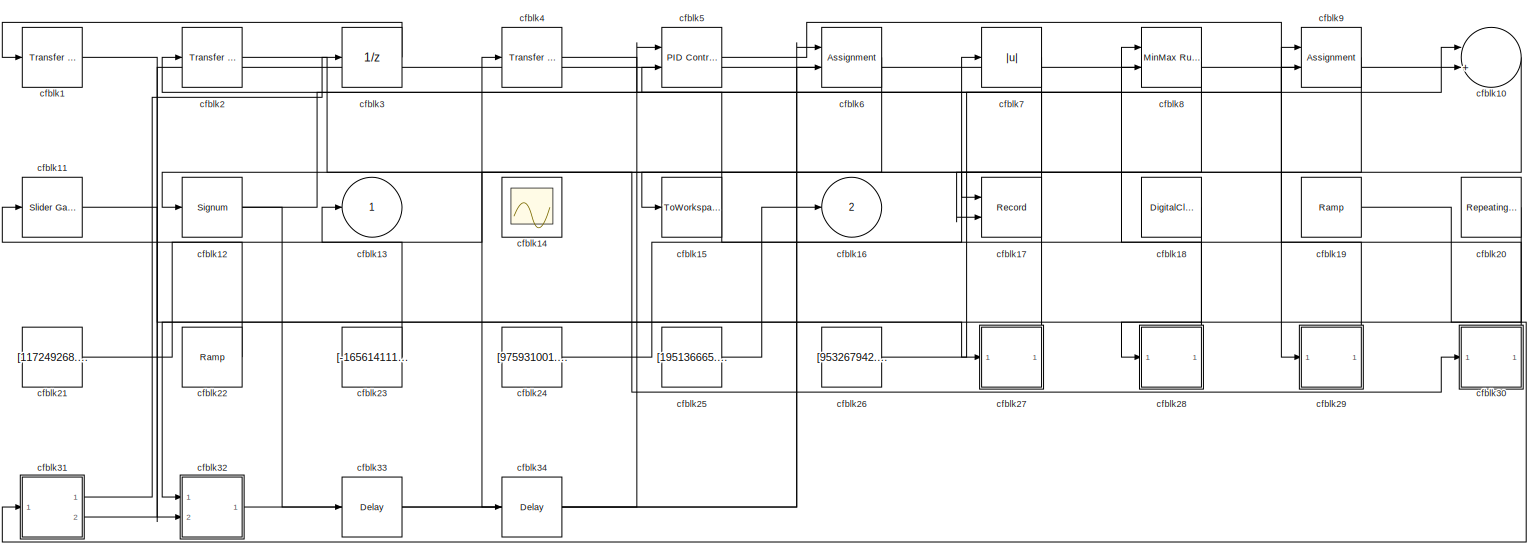
[diagram: root canvas - part 1/1, most of the canvas]
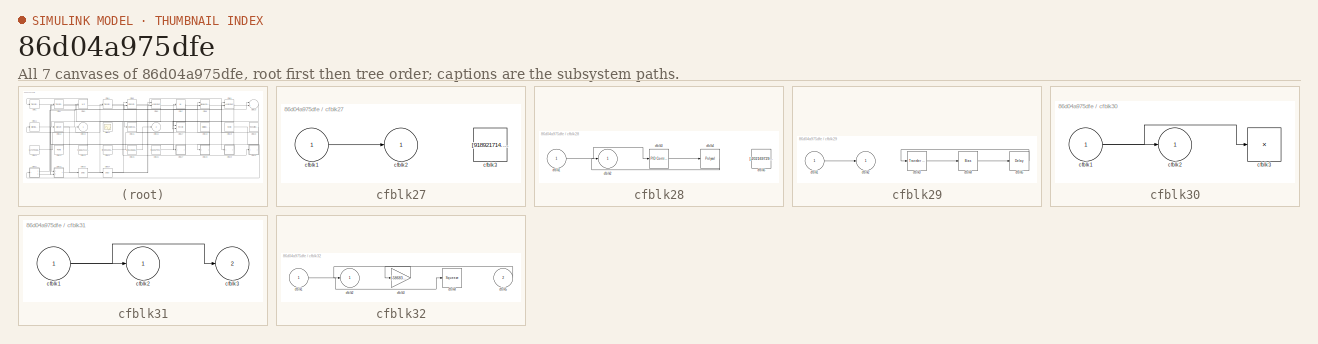
[diagram: thumbnail index - all 7 canvases of the model, root first then tree order]
MODEL slx_86d04a975dfe
KIND model
CONFIG AbsTol = auto
CONFIG EnableMultiTasking = off
CONFIG FixedStep = auto
CONFIG MaxStep = auto
CONFIG MinStep = auto
CONFIG RelTol = 1e-3
CONFIG SampleTimeConstraint = Unconstrained
CONFIG SolverName = VariableStepAuto
CONFIG StartTime = 0.0
CONFIG StopTime = 10.0
BLOCK [Reference] cfblk1  REF=simulink/Discrete/Transfer Fcn
Lead or Lag
  Ports = [1, 1]
  SourceBlock = simulink/Discrete/Transfer Fcn\nLead or Lag
  SourceProductBaseCode = SL
  SourceType = Lead or Lag Compensator
BLOCK [Sum] cfblk10
  Inputs = |++
  Ports = [2, 1]
BLOCK [Reference] cfblk11  REF=simulink/Math
Operations/Slider
Gain
  Ports = [1, 1]
  SourceBlock = simulink/Math\nOperations/Slider\nGain
  SourceProductBaseCode = SL
  SourceType = Slider Gain
BLOCK [Signum] cfblk12
BLOCK [Outport] cfblk13
BLOCK [Scope] cfblk14
  Floating = on
  NumInputPorts = 1
  Ports = []
BLOCK [ToWorkspace] cfblk15
  FixptAsFi = on
  MaxDataPoints = inf
  Ports = [1]
  SampleTime = -1
  SaveFormat = Timeseries
  VariableName = xakxdil
BLOCK [Outport] cfblk16
  Port = 2
BLOCK [Record] cfblk17
  CompatibilityTag = XY
  FileSettingsInternal = {"entries":[{"content":{"excelSettings":{"content":{},"type":"Streamout.ExcelSettings"}},"type":"Streamout.FileSettingStorage","uuid":"9ed2084d-aebc-46d6-8643-ebe00567703e"}],"packageUris":["http://schema.mathworks.com/mf0/streamout_blocks/R2020a"],"version":"1.0"}
  Layout = [1 1]
  Ports = [2]
  SignalsInternal = {"entries":[{"content":{"signals":[{"content":{"blockPath":["sampleModel118/cfblk17"],"channel":[],"dimensions":[1],"domain":"sampleModel118/cfblk17","lineColor":"#a2142f","plots":[1],"port":1,"sid":[""],"signalID":4117,"signalName":"cfblk10"},"type":"RecordBlkView.Signal","uuid":"52a52ea8-9830-41bb-b95f-4e4f0631b285"},{"content":{"blockPath":["sampleModel118/cfblk17"],"channel":[],"dimensions":[1...<+382ch>
  VisualizationBindings = {"xyplotplugin":{"info":[{"series":[{"bindingParametersList":[{"parameter":"X-Axis","signalID":4117,"signalName":"cfblk10"},{"parameter":"Y-Axis","signalID":4121,"signalName":"cfblk7"}],"seriesID":62875}],"subplotID":1}]}}
BLOCK [DigitalClock] cfblk18
BLOCK [Reference] cfblk19  REF=simulink/Sources/Ramp
  Ports = [0, 1]
  SourceBlock = simulink/Sources/Ramp
  SourceProductBaseCode = SL
  SourceType = Ramp
BLOCK [Reference] cfblk2  REF=simulink/Discrete/Transfer Fcn
Real Zero
  Ports = [1, 1]
  SourceBlock = simulink/Discrete/Transfer Fcn\nReal Zero
  SourceProductBaseCode = SL
  SourceType = Transfer Fcn Real Zero
BLOCK [Reference] cfblk20  REF=simulink/Sources/Repeating
Sequence
  Ports = [0, 1]
  SourceBlock = simulink/Sources/Repeating\nSequence
  SourceProductBaseCode = SL
  SourceType = Repeating table
BLOCK [Constant] cfblk21
  SampleTime = 1
  Value = [117249268.401399]
BLOCK [Reference] cfblk22  REF=simulink/Sources/Ramp
  Ports = [0, 1]
  SourceBlock = simulink/Sources/Ramp
  SourceProductBaseCode = SL
  SourceType = Ramp
BLOCK [Constant] cfblk23
  SampleTime = 1
  Value = [-165614111.338915]
BLOCK [Constant] cfblk24
  SampleTime = 1
  Value = [975931001.148406]
BLOCK [Constant] cfblk25
  SampleTime = 1
  Value = [195136665.096905]
BLOCK [Constant] cfblk26
  SampleTime = 1
  Value = [953267942.921165]
BLOCK [SubSystem] cfblk27
  Ports = [1, 1]
  RequestExecContextInheritance = off
BLOCK [Inport] cfblk27/cfblk1
BLOCK [Outport] cfblk27/cfblk2
BLOCK [Constant] cfblk27/cfblk3
  SampleTime = 1
  Value = [918921714.442486]
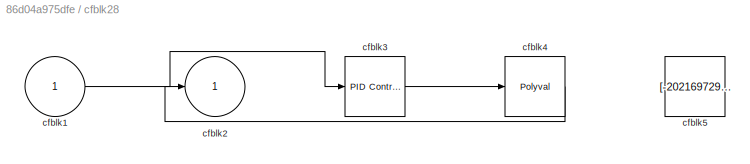
BLOCK [SubSystem] cfblk28
  Ports = [1, 1]
  RequestExecContextInheritance = off
BLOCK [Inport] cfblk28/cfblk1
BLOCK [Outport] cfblk28/cfblk2
BLOCK [Reference] cfblk28/cfblk3  REF=slpidlib/PID Controller
  Ports = [1, 1]
  SourceBlock = slpidlib/PID Controller
  SourceProductBaseCode = SL
  SourceType = PID 1dof
BLOCK [Polyval] cfblk28/cfblk4
  Coefs = [ +2.081618890e-019, -1.441693666e-014, +4.719686976e-010, -8.536869453e-006, +1.621573104e-001, -8.087801117e+001 ]
BLOCK [Constant] cfblk28/cfblk5
  SampleTime = 1
  Value = [-202169729.794304]
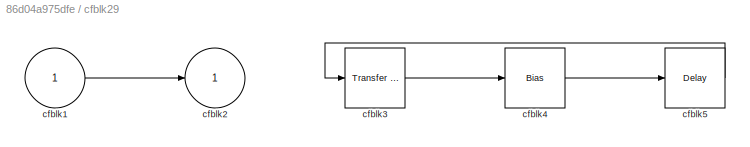
BLOCK [SubSystem] cfblk29
  Ports = [1, 1]
  RequestExecContextInheritance = off
BLOCK [Inport] cfblk29/cfblk1
BLOCK [Outport] cfblk29/cfblk2
BLOCK [Reference] cfblk29/cfblk3  REF=simulink/Discrete/Transfer Fcn
Lead or Lag
  Ports = [1, 1]
  SourceBlock = simulink/Discrete/Transfer Fcn\nLead or Lag
  SourceProductBaseCode = SL
  SourceType = Lead or Lag Compensator
BLOCK [Bias] cfblk29/cfblk4
  Bias = [-587861847.669628]
  SaturateOnIntegerOverflow = off
BLOCK [Delay] cfblk29/cfblk5
  InputPortMap = u0
  Ports = [1, 1]
  SampleTime = 1
BLOCK [UnitDelay] cfblk3
  HasFrameUpgradeWarning = on
BLOCK [SubSystem] cfblk30
  Ports = [1, 1]
  RequestExecContextInheritance = off
BLOCK [Inport] cfblk30/cfblk1
BLOCK [Outport] cfblk30/cfblk2
BLOCK [Product] cfblk30/cfblk3
  Inputs = *
  Ports = [1, 1]
BLOCK [SubSystem] cfblk31
  Ports = [1, 2]
  RequestExecContextInheritance = off
BLOCK [Inport] cfblk31/cfblk1
BLOCK [Outport] cfblk31/cfblk2
BLOCK [Outport] cfblk31/cfblk3
  Port = 2
BLOCK [SubSystem] cfblk32
  Ports = [2, 1]
  RequestExecContextInheritance = off
BLOCK [Inport] cfblk32/cfblk1
BLOCK [Outport] cfblk32/cfblk2
BLOCK [Gain] cfblk32/cfblk3
  Gain = [-586837005.210885]
BLOCK [Squeeze] cfblk32/cfblk4
BLOCK [Inport] cfblk32/cfblk5
  Port = 2
BLOCK [Delay] cfblk33
  InputPortMap = u0
  Ports = [1, 1]
  SampleTime = 1
BLOCK [Delay] cfblk34
  InputPortMap = u0
  Ports = [1, 1]
  SampleTime = 1
BLOCK [Reference] cfblk4  REF=simulink/Discrete/Transfer Fcn
Real Zero
  Ports = [1, 1]
  SourceBlock = simulink/Discrete/Transfer Fcn\nReal Zero
  SourceProductBaseCode = SL
  SourceType = Transfer Fcn Real Zero
BLOCK [Reference] cfblk5  REF=slpidlib/PID Controller (2DOF)
  Ports = [2, 1]
  SourceBlock = slpidlib/PID Controller (2DOF)
  SourceProductBaseCode = SL
  SourceType = PID 2dof
BLOCK [Assignment] cfblk6
  DiagnosticForDimensions = Warning
  IndexOptions = Index vector (dialog)
  Indices = 1
  OutputSizes = 1
  Ports = [2, 1]
BLOCK [Abs] cfblk7
  SaturateOnIntegerOverflow = off
BLOCK [Reference] cfblk8  REF=simulink/Math
Operations/MinMax
Running
Resettable
  Ports = [2, 1]
  SourceBlock = simulink/Math\nOperations/MinMax\nRunning\nResettable
  SourceProductBaseCode = SL
  SourceType = MinMax Running Resettable
BLOCK [Assignment] cfblk9
  DiagnosticForDimensions = Warning
  IndexOptions = Index vector (dialog)
  Indices = 1
  OutputSizes = 1
  Ports = [2, 1]
LINE cfblk10:1 -> cfblk17:1
LINE cfblk11:1 -> cfblk27:1
NET cfblk12:1 -> cfblk10:1, cfblk33:1
LINE cfblk18:1 -> cfblk32:1
LINE cfblk19:1 -> cfblk31:1
LINE cfblk1:1 -> cfblk32:2
LINE cfblk20:1 -> cfblk28:1
LINE cfblk21:1 -> cfblk4:1
LINE cfblk22:1 -> cfblk11:1
LINE cfblk23:1 -> cfblk13:1
LINE cfblk24:1 -> cfblk7:1
LINE cfblk25:1 -> cfblk16:1
LINE cfblk26:1 -> cfblk9:1
LINE cfblk27/cfblk1:1 -> cfblk27/cfblk2:1
LINE cfblk27:1 -> cfblk2:1
LINE cfblk28/cfblk1:1 -> cfblk28/cfblk3:1
LINE cfblk28/cfblk3:1 -> cfblk28/cfblk4:1
LINE cfblk28/cfblk4:1 -> cfblk28/cfblk2:1
LINE cfblk28:1 -> cfblk8:1
LINE cfblk29/cfblk1:1 -> cfblk29/cfblk2:1
LINE cfblk29/cfblk3:1 -> cfblk29/cfblk4:1
LINE cfblk29/cfblk4:1 -> cfblk29/cfblk5:1
LINE cfblk29/cfblk5:1 -> cfblk29/cfblk3:1
LINE cfblk29:1 -> cfblk9:2
LINE cfblk2:1 -> cfblk30:1
NET cfblk30/cfblk1:1 -> cfblk30/cfblk2:1, cfblk30/cfblk3:1
LINE cfblk30:1 -> cfblk5:2
NET cfblk31/cfblk1:1 -> cfblk31/cfblk2:1, cfblk31/cfblk3:1
LINE cfblk31:1 -> cfblk3:1
LINE cfblk31:2 -> cfblk10:2
LINE cfblk32/cfblk1:1 -> cfblk32/cfblk4:1
LINE cfblk32/cfblk3:1 -> cfblk32/cfblk2:1
LINE cfblk32/cfblk5:1 -> cfblk32/cfblk3:1
LINE cfblk32:1 -> cfblk6:1
LINE cfblk33:1 -> cfblk6:2
LINE cfblk34:1 -> cfblk5:1
LINE cfblk3:1 -> cfblk1:1
LINE cfblk4:1 -> cfblk8:2
LINE cfblk5:1 -> cfblk29:1
LINE cfblk6:1 -> cfblk12:1
LINE cfblk7:1 -> cfblk17:2
LINE cfblk8:1 -> cfblk15:1
LINE cfblk9:1 -> cfblk34:1
note: NET lines group one-source signal fan-out (src -> all destinations, sorted); 1:1 wires keep LINE
